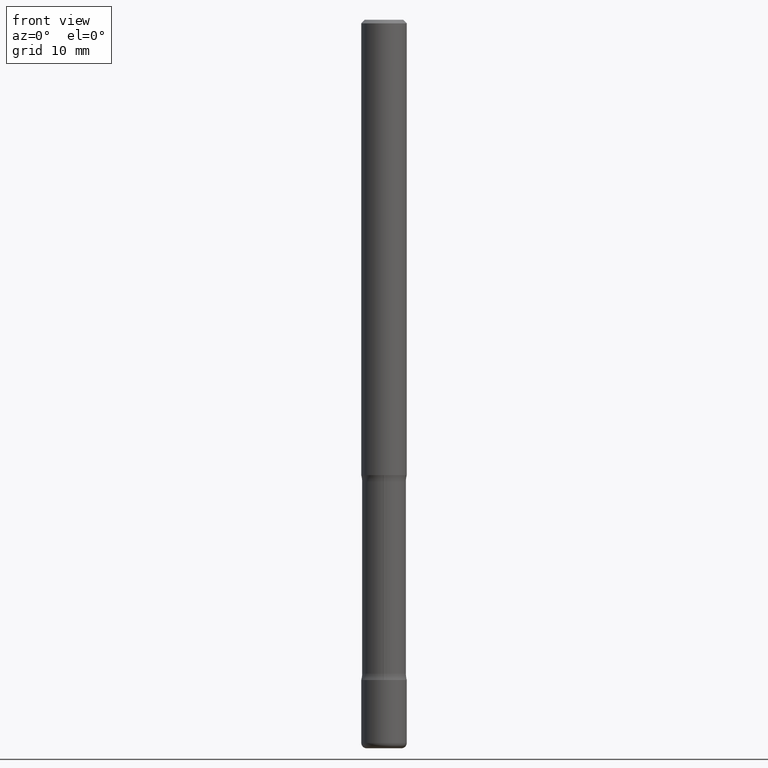
[diagram: clean part render]
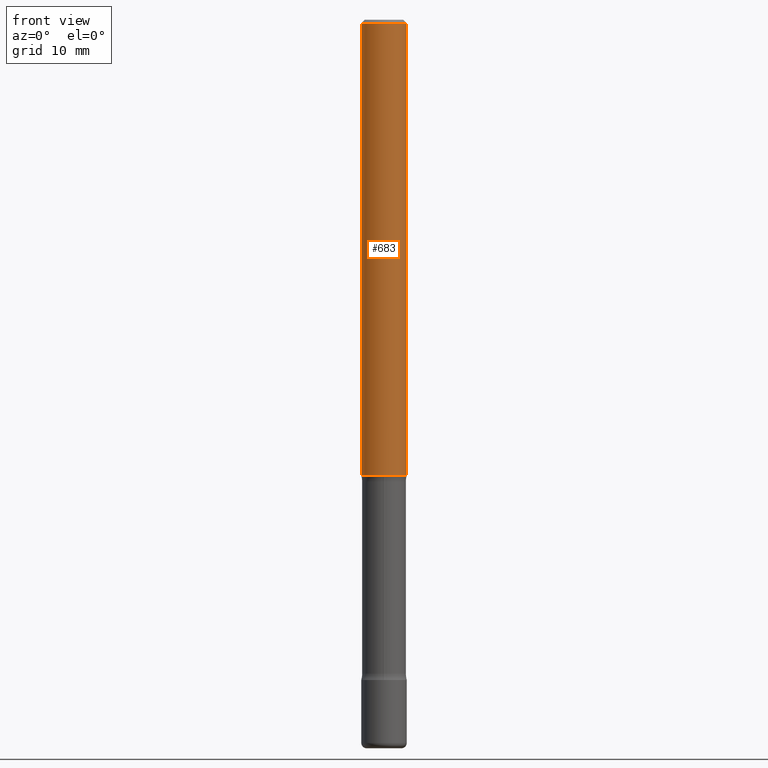
[diagram: same view with one face highlighted and labeled with its STEP entity id]
A machine part, front view. The second image highlights one B-rep face of the part: STEP entity #683.
In plain terms, the highlighted cylindrical surface (edge-blend (fillet) strip) has radius 3.175 mm, axis along (-0, 0, 1).
Its self-contained STEP definition (entity closure, byte-faithful):
#18 = FACE_OUTER_BOUND ( 'NONE', #376, .T. ) ;
#21 = CARTESIAN_POINT ( 'NONE',  ( -0.1249999999999996947, 8.030407079339181671E-16, -0.02000000000000002470 ) ) ;
#146 = CARTESIAN_POINT ( 'NONE',  ( 0.000000000000000000, 0.000000000000000000, 0.000000000000000000 ) ) ;
#208 = CYLINDRICAL_SURFACE ( 'NONE', #362, 0.1249999999999998473 ) ;
#212 = DIRECTION ( 'NONE',  ( 1.000000000000000000, -6.982962677686270655E-15, 0.000000000000000000 ) ) ;
#215 = AXIS2_PLACEMENT_3D ( 'NONE', #348, #481, #416 ) ;
#224 = EDGE_CURVE ( 'NONE', #596, #724, #654, .T. ) ;
#299 = EDGE_CURVE ( 'NONE', #417, #596, #444, .T. ) ;
#303 = CARTESIAN_POINT ( 'NONE',  ( 0.1250000000000000000, -9.601573681818648281E-15, -2.500000000000000000 ) ) ;
#348 = CARTESIAN_POINT ( 'NONE',  ( 4.890937612370279289E-31, -6.982962677686299005E-17, -0.02000000000000002470 ) ) ;
#352 = CARTESIAN_POINT ( 'NONE',  ( -0.1250000000000000278, -3.511088067242232183E-15, -2.500000000000000000 ) ) ;
#362 = AXIS2_PLACEMENT_3D ( 'NONE', #146, #589, #393 ) ;
#376 = EDGE_LOOP ( 'NONE', ( #591, #549, #600, #532 ) ) ;
#381 = EDGE_CURVE ( 'NONE', #700, #724, #572, .T. ) ;
#389 = CARTESIAN_POINT ( 'NONE',  ( 0.1249999999999996947, -9.273918764983021797E-16, -0.02000000000000002470 ) ) ;
#393 = DIRECTION ( 'NONE',  ( 1.000000000000000000, -6.982962677686266711E-15, 4.876176775795935793E-29 ) ) ;
#409 = LINE ( 'NONE', #672, #622 ) ;
#416 = DIRECTION ( 'NONE',  ( 1.000000000000000000, -6.982962677686266711E-15, 0.000000000000000000 ) ) ;
#417 = VERTEX_POINT ( 'NONE', #352 ) ;
#444 = CIRCLE ( 'NONE', #612, 0.1250000000000000000 ) ;
#456 = DIRECTION ( 'NONE',  ( -2.445468806185136597E-29, 3.491481338843145583E-15, 1.000000000000000000 ) ) ;
#459 = EDGE_CURVE ( 'NONE', #417, #700, #409, .T. ) ;
#481 = DIRECTION ( 'NONE',  ( -2.445468806185136597E-29, 3.491481338843145583E-15, 1.000000000000000000 ) ) ;
#521 = DIRECTION ( 'NONE',  ( -2.445468806185136877E-29, 3.491481338843145188E-15, 1.000000000000000000 ) ) ;
#530 = DIRECTION ( 'NONE',  ( -2.445468806185136877E-29, 3.491481338843145188E-15, 1.000000000000000000 ) ) ;
#532 = ORIENTED_EDGE ( 'NONE', *, *, #381, .F. ) ;
#549 = ORIENTED_EDGE ( 'NONE', *, *, #299, .T. ) ;
#572 = CIRCLE ( 'NONE', #215, 0.1249999999999996947 ) ;
#589 = DIRECTION ( 'NONE',  ( -2.445468806185136597E-29, 3.491481338843145583E-15, 1.000000000000000000 ) ) ;
#591 = ORIENTED_EDGE ( 'NONE', *, *, #459, .F. ) ;
#596 = VERTEX_POINT ( 'NONE', #303 ) ;
#600 = ORIENTED_EDGE ( 'NONE', *, *, #224, .T. ) ;
#612 = AXIS2_PLACEMENT_3D ( 'NONE', #718, #456, #212 ) ;
#622 = VECTOR ( 'NONE', #530, 39.37007874015748143 ) ;
#654 = LINE ( 'NONE', #704, #777 ) ;
#672 = CARTESIAN_POINT ( 'NONE',  ( -0.1249999999999998473, 8.881784197001241477E-16, -6.148668862818624520E-30 ) ) ;
#683 = ADVANCED_FACE ( 'NONE', ( #18 ), #208, .T. ) ;
#700 = VERTEX_POINT ( 'NONE', #21 ) ;
#704 = CARTESIAN_POINT ( 'NONE',  ( 0.1249999999999998473, -8.728703347107822541E-16, 6.095220969744912034E-30 ) ) ;
#718 = CARTESIAN_POINT ( 'NONE',  ( 6.113672015462842613E-29, -8.728703347107864943E-15, -2.500000000000000000 ) ) ;
#724 = VERTEX_POINT ( 'NONE', #389 ) ;
#777 = VECTOR ( 'NONE', #521, 39.37007874015748143 ) ;